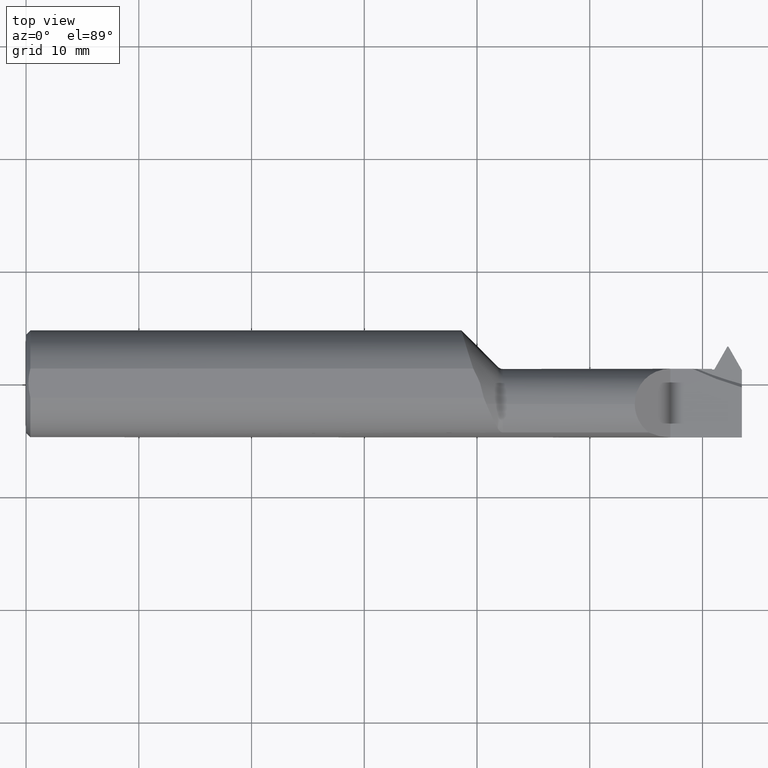
[diagram: clean part render]
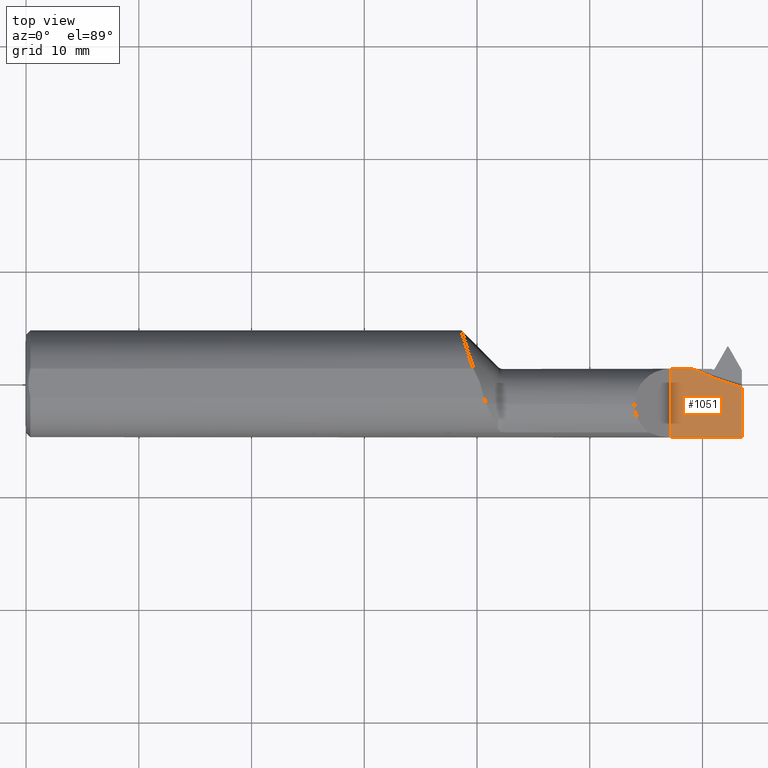
[diagram: same view with one face highlighted and labeled with its STEP entity id]
A machine part, top view. The second image highlights one B-rep face of the part: STEP entity #1051.
In plain terms, the highlighted planar face has unit normal (-0, 0, -1).
Its self-contained STEP definition (entity closure, byte-faithful):
#13 = DIRECTION ( 'NONE',  ( -0.000000000000000000, 1.000000000000000000, -0.000000000000000000 ) ) ;
#47 = ORIENTED_EDGE ( 'NONE', *, *, #172, .F. ) ;
#54 = DIRECTION ( 'NONE',  ( -1.000000000000000000, 0.000000000000000000, 0.000000000000000000 ) ) ;
#74 = EDGE_CURVE ( 'NONE', #165, #993, #105, .T. ) ;
#84 = CARTESIAN_POINT ( 'NONE',  ( 2.500000000000000000, -0.01210074471316514681, -6.429183357567480113E-17 ) ) ;
#105 = LINE ( 'NONE', #992, #486 ) ;
#109 = EDGE_CURVE ( 'NONE', #692, #177, #952, .T. ) ;
#149 = CARTESIAN_POINT ( 'NONE',  ( 2.250000000000000000, 0.2999999999999999889, -6.429183357567480113E-17 ) ) ;
#165 = VERTEX_POINT ( 'NONE', #825 ) ;
#168 = CARTESIAN_POINT ( 'NONE',  ( 2.440786647543602417, 0.004644180403841182206, -6.829619984160658046E-17 ) ) ;
#172 = EDGE_CURVE ( 'NONE', #993, #692, #918, .T. ) ;
#177 = VERTEX_POINT ( 'NONE', #521 ) ;
#184 = CARTESIAN_POINT ( 'NONE',  ( 2.327514123660666456, 0.05265000000000019664, -1.851388840639819892E-16 ) ) ;
#192 = AXIS2_PLACEMENT_3D ( 'NONE', #149, #474, #54 ) ;
#198 = DIRECTION ( 'NONE',  ( 1.000000000000000000, 0.000000000000000000, 0.000000000000000000 ) ) ;
#283 = EDGE_CURVE ( 'NONE', #590, #165, #445, .T. ) ;
#336 = DIRECTION ( 'NONE',  ( -1.000000000000000000, -0.000000000000000000, -0.000000000000000000 ) ) ;
#445 = LINE ( 'NONE', #837, #573 ) ;
#446 = CARTESIAN_POINT ( 'NONE',  ( 2.327514123660666456, 0.05265000000000019664, -1.851388840639819892E-16 ) ) ;
#474 = DIRECTION ( 'NONE',  ( -0.000000000000000000, 0.000000000000000000, -1.000000000000000000 ) ) ;
#486 = VECTOR ( 'NONE', #904, 39.37007874015748143 ) ;
#521 = CARTESIAN_POINT ( 'NONE',  ( 2.500000000000000000, -0.01210074471316514681, -6.429183357567480113E-17 ) ) ;
#556 = EDGE_LOOP ( 'NONE', ( #807, #47, #866, #780, #561 ) ) ;
#561 = ORIENTED_EDGE ( 'NONE', *, *, #647, .T. ) ;
#565 = PLANE ( 'NONE',  #192 ) ;
#573 = VECTOR ( 'NONE', #336, 39.37007874015748143 ) ;
#588 = CARTESIAN_POINT ( 'NONE',  ( 2.500000000000000000, -0.1873499999999998222, -6.429183357567480113E-17 ) ) ;
#589 = CARTESIAN_POINT ( 'NONE',  ( 2.383158777789716964, 0.02627753127285030812, -6.829619984160658046E-17 ) ) ;
#590 = VERTEX_POINT ( 'NONE', #588 ) ;
#625 = VECTOR ( 'NONE', #13, 39.37007874015748143 ) ;
#647 = EDGE_CURVE ( 'NONE', #590, #177, #824, .T. ) ;
#692 = VERTEX_POINT ( 'NONE', #446 ) ;
#778 = CARTESIAN_POINT ( 'NONE',  ( 2.250000000000000000, 0.05265000000000016889, -6.429183357567478880E-17 ) ) ;
#780 = ORIENTED_EDGE ( 'NONE', *, *, #283, .F. ) ;
#807 = ORIENTED_EDGE ( 'NONE', *, *, #109, .F. ) ;
#816 = CARTESIAN_POINT ( 'NONE',  ( 2.500000000000000000, 0.2999999999999999889, -6.429183357567480113E-17 ) ) ;
#824 = LINE ( 'NONE', #816, #625 ) ;
#825 = CARTESIAN_POINT ( 'NONE',  ( 2.250000000000000000, -0.1873499999999999610, -6.429183357567478880E-17 ) ) ;
#837 = CARTESIAN_POINT ( 'NONE',  ( 2.500000000000000000, -0.1873499999999999888, -6.429183357567480113E-17 ) ) ;
#846 = FACE_OUTER_BOUND ( 'NONE', #556, .T. ) ;
#866 = ORIENTED_EDGE ( 'NONE', *, *, #74, .F. ) ;
#904 = DIRECTION ( 'NONE',  ( -0.000000000000000000, 1.000000000000000000, -0.000000000000000000 ) ) ;
#918 = LINE ( 'NONE', #923, #938 ) ;
#923 = CARTESIAN_POINT ( 'NONE',  ( 1.655000000000000249, 0.05265000000000018970, -6.429183357567480113E-17 ) ) ;
#938 = VECTOR ( 'NONE', #198, 39.37007874015748143 ) ;
#952 =( BOUNDED_CURVE ( )  B_SPLINE_CURVE ( 3, ( #184, #589, #168, #84 ),
 .UNSPECIFIED., .F., .T. ) 
 B_SPLINE_CURVE_WITH_KNOTS ( ( 4, 4 ),
 ( 5.843042955691021056, 6.009244269921814485 ),
 .UNSPECIFIED. ) 
 CURVE ( )  GEOMETRIC_REPRESENTATION_ITEM ( )  RATIONAL_B_SPLINE_CURVE ( ( 1.000000000000000000, 0.9976994179840421584, 0.9976994179840421584, 1.000000000000000000 ) ) 
 REPRESENTATION_ITEM ( '' )  );
#992 = CARTESIAN_POINT ( 'NONE',  ( 2.250000000000000000, 0.2999999999999999889, -6.429183357567480113E-17 ) ) ;
#993 = VERTEX_POINT ( 'NONE', #778 ) ;
#1051 = ADVANCED_FACE ( 'NONE', ( #846 ), #565, .F. ) ;